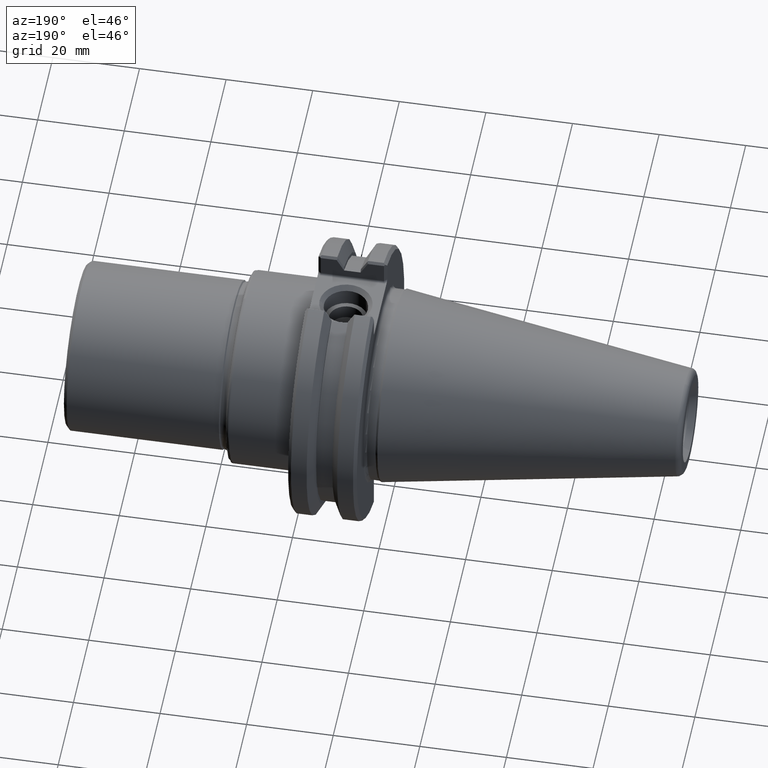
[diagram: clean part render]
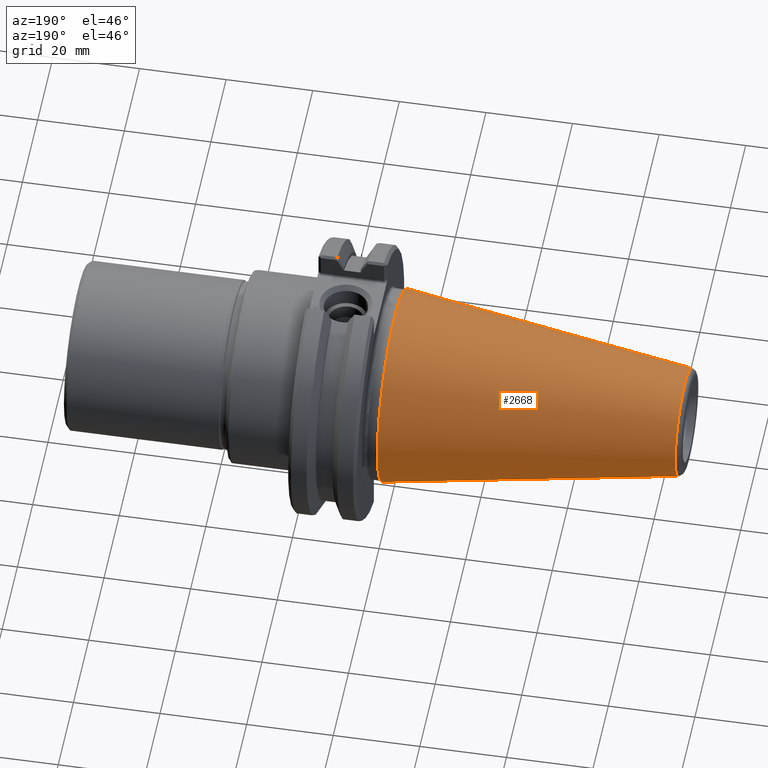
[diagram: same view with one face highlighted and labeled with its STEP entity id]
A machine part, auxiliary view. The second image highlights one B-rep face of the part: STEP entity #2668.
In plain terms, the highlighted conical surface has half-angle 8.297 deg.
Its self-contained STEP definition (entity closure, byte-faithful):
#116=CONICAL_SURFACE('',#3011,0.679076388285061,0.144809968037969);
#343=LINE('',#5793,#519);
#519=VECTOR('',#3699,0.679076388285045);
#700=FACE_OUTER_BOUND('',#852,.T.);
#852=EDGE_LOOP('',(#2393,#2394,#2395,#2396,#2397,#2398,#2399));
#984=CIRCLE('',#2990,0.875);
#985=CIRCLE('',#2991,0.875);
#993=CIRCLE('',#3004,0.489891260103121);
#994=CIRCLE('',#3005,0.489891260103121);
#998=CIRCLE('',#3009,0.489891260103121);
#1287=VERTEX_POINT('',#5752);
#1288=VERTEX_POINT('',#5754);
#1296=VERTEX_POINT('',#5780);
#1297=VERTEX_POINT('',#5781);
#1298=VERTEX_POINT('',#5783);
#1667=EDGE_CURVE('',#1287,#1288,#984,.T.);
#1668=EDGE_CURVE('',#1288,#1287,#985,.T.);
#1680=EDGE_CURVE('',#1296,#1297,#993,.T.);
#1681=EDGE_CURVE('',#1297,#1298,#994,.T.);
#1685=EDGE_CURVE('',#1298,#1296,#998,.T.);
#1686=EDGE_CURVE('',#1287,#1297,#343,.T.);
#2393=ORIENTED_EDGE('',*,*,#1668,.F.);
#2394=ORIENTED_EDGE('',*,*,#1667,.F.);
#2395=ORIENTED_EDGE('',*,*,#1686,.T.);
#2396=ORIENTED_EDGE('',*,*,#1680,.F.);
#2397=ORIENTED_EDGE('',*,*,#1685,.F.);
#2398=ORIENTED_EDGE('',*,*,#1681,.F.);
#2399=ORIENTED_EDGE('',*,*,#1686,.F.);
#2668=ADVANCED_FACE('',(#700),#116,.T.);
#2990=AXIS2_PLACEMENT_3D('',#5755,#3651,#3652);
#2991=AXIS2_PLACEMENT_3D('',#5756,#3653,#3654);
#3004=AXIS2_PLACEMENT_3D('',#5782,#3683,#3684);
#3005=AXIS2_PLACEMENT_3D('',#5784,#3685,#3686);
#3009=AXIS2_PLACEMENT_3D('',#5790,#3693,#3694);
#3011=AXIS2_PLACEMENT_3D('',#5792,#3697,#3698);
#3651=DIRECTION('center_axis',(1.,1.16523256636576E-36,0.));
#3652=DIRECTION('ref_axis',(1.62451355720802E-13,1.,0.));
#3653=DIRECTION('center_axis',(1.,1.16523256636576E-36,0.));
#3654=DIRECTION('ref_axis',(1.62451355720802E-13,1.,0.));
#3683=DIRECTION('center_axis',(-1.,3.56891999987323E-15,8.18993717006067E-29));
#3684=DIRECTION('ref_axis',(-3.56891999987323E-15,-1.,-2.8330424671867E-30));
#3685=DIRECTION('center_axis',(-1.,3.56891999987323E-15,8.18993717006067E-29));
#3686=DIRECTION('ref_axis',(-3.56891999987323E-15,-1.,-2.8330424671867E-30));
#3693=DIRECTION('center_axis',(-1.,3.56891999987323E-15,8.18993717006067E-29));
#3694=DIRECTION('ref_axis',(-3.56891999987323E-15,-1.,-2.8330424671867E-30));
#3697=DIRECTION('center_axis',(1.,1.16523256636576E-36,0.));
#3698=DIRECTION('ref_axis',(1.62451355720802E-13,1.,0.));
#3699=DIRECTION('',(-0.989533346185554,0.144304389353962,1.76721908525243E-17));
#5752=CARTESIAN_POINT('',(-1.065448036009E-13,-0.875000000000062,1.07156594925401E-16));
#5754=CARTESIAN_POINT('',(0.,0.875,0.));
#5755=CARTESIAN_POINT('Origin',(0.,-1.60802094158475E-36,0.));
#5756=CARTESIAN_POINT('Origin',(0.,-1.60802094158475E-36,0.));
#5780=CARTESIAN_POINT('',(-2.64079243702511,0.48989126010311,-1.19984789960865E-16));
#5781=CARTESIAN_POINT('',(-2.6407924370253,-0.489891260103105,-5.99943763615531E-17));
#5782=CARTESIAN_POINT('Origin',(-2.64079243702511,-1.13207780857447E-14,
-5.99923949804333E-17));
#5783=CARTESIAN_POINT('',(-2.64079243702511,-5.99943763615526E-17,0.489891260103121));
#5784=CARTESIAN_POINT('Origin',(-2.64079243702511,-1.13207780857447E-14,
-5.99923949804333E-17));
#5790=CARTESIAN_POINT('Origin',(-2.64079243702511,-1.13207780857447E-14,
-5.99923949804333E-17));
#5792=CARTESIAN_POINT('Origin',(-1.3435,-3.17351089449714E-36,0.));
#5793=CARTESIAN_POINT('',(-1.34350000000011,-0.679076388285061,-8.31628725289845E-17));